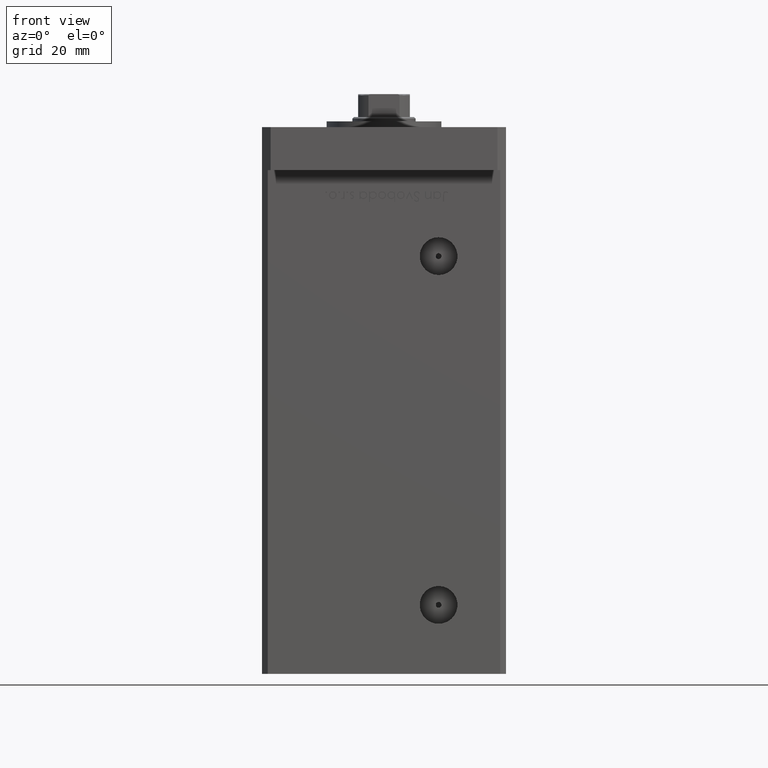
[diagram: clean part render]
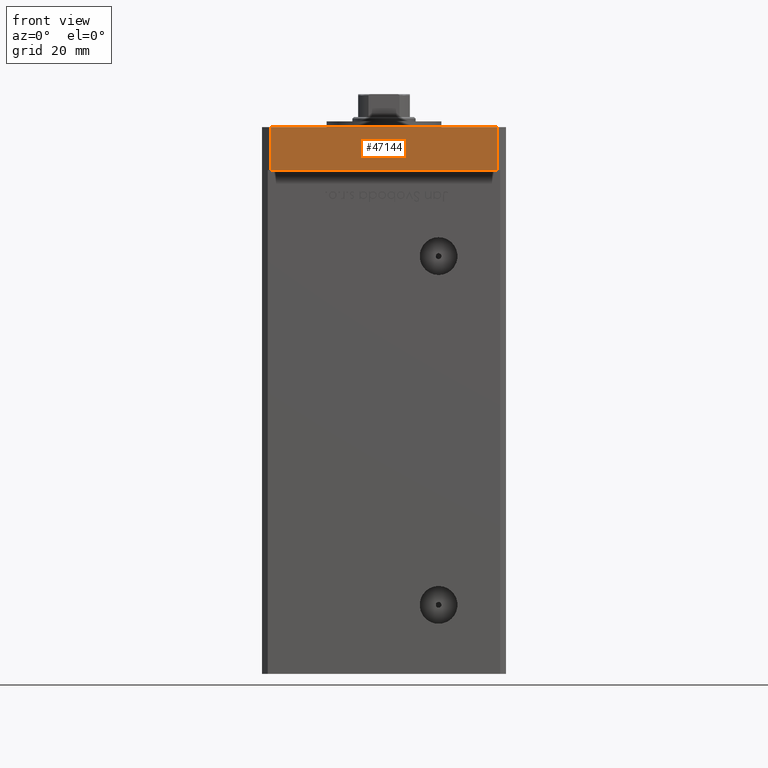
[diagram: same view with one face highlighted and labeled with its STEP entity id]
A machine part, front view. The second image highlights one B-rep face of the part: STEP entity #47144.
In plain terms, the highlighted planar face has unit normal (-0, 1, 0).
Its self-contained STEP definition (entity closure, byte-faithful):
#983 = LINE ( 'NONE', #4773, #1119 ) ;
#1119 = VECTOR ( 'NONE', #37879, 1000.000000000000000 ) ;
#1946 = DIRECTION ( 'NONE',  ( -0.000000000000000000, -0.000000000000000000, -1.000000000000000000 ) ) ;
#2921 = FACE_OUTER_BOUND ( 'NONE', #47126, .T. ) ;
#4773 = CARTESIAN_POINT ( 'NONE',  ( -39.50000000000000000, -65.00000000000000000, 15.00000000000000000 ) ) ;
#7541 = CARTESIAN_POINT ( 'NONE',  ( -39.50000000000000000, -65.00000000000000000, 15.00000000000000000 ) ) ;
#9667 = ORIENTED_EDGE ( 'NONE', *, *, #43617, .F. ) ;
#10546 = AXIS2_PLACEMENT_3D ( 'NONE', #7541, #41154, #32748 ) ;
#13703 = DIRECTION ( 'NONE',  ( 1.000000000000000000, 1.405345600791337191E-15, 0.000000000000000000 ) ) ;
#17438 = EDGE_CURVE ( 'NONE', #45954, #48967, #46798, .T. ) ;
#17784 = VECTOR ( 'NONE', #13703, 1000.000000000000000 ) ;
#18351 = LINE ( 'NONE', #18883, #32237 ) ;
#18883 = CARTESIAN_POINT ( 'NONE',  ( -39.50000000000000000, -65.00000000000000000, 15.00000000000000000 ) ) ;
#22178 = DIRECTION ( 'NONE',  ( -0.000000000000000000, -0.000000000000000000, -1.000000000000000000 ) ) ;
#23533 = VECTOR ( 'NONE', #1946, 1000.000000000000000 ) ;
#24093 = PLANE ( 'NONE',  #10546 ) ;
#28409 = CARTESIAN_POINT ( 'NONE',  ( 39.50000000000001421, -64.99999999999988631, 15.00000000000000000 ) ) ;
#28872 = ORIENTED_EDGE ( 'NONE', *, *, #17438, .T. ) ;
#29148 = CARTESIAN_POINT ( 'NONE',  ( -39.50000000000000000, -65.00000000000000000, 15.00000000000000000 ) ) ;
#31244 = LINE ( 'NONE', #51589, #23533 ) ;
#32237 = VECTOR ( 'NONE', #22178, 1000.000000000000000 ) ;
#32748 = DIRECTION ( 'NONE',  ( -1.000000000000000000, -1.405345600791337191E-15, 0.000000000000000000 ) ) ;
#32858 = VERTEX_POINT ( 'NONE', #29148 ) ;
#34310 = CARTESIAN_POINT ( 'NONE',  ( -39.50000000000000000, -65.00000000000000000, 0.000000000000000000 ) ) ;
#37879 = DIRECTION ( 'NONE',  ( 1.000000000000000000, 1.405345600791337191E-15, 0.000000000000000000 ) ) ;
#38276 = CARTESIAN_POINT ( 'NONE',  ( 39.50000000000001421, -64.99999999999988631, 0.000000000000000000 ) ) ;
#41154 = DIRECTION ( 'NONE',  ( -1.405345600791337191E-15, 1.000000000000000000, 0.000000000000000000 ) ) ;
#41363 = ORIENTED_EDGE ( 'NONE', *, *, #49514, .F. ) ;
#43617 = EDGE_CURVE ( 'NONE', #43905, #48967, #31244, .T. ) ;
#43874 = CARTESIAN_POINT ( 'NONE',  ( -39.50000000000000000, -65.00000000000000000, 0.000000000000000000 ) ) ;
#43905 = VERTEX_POINT ( 'NONE', #28409 ) ;
#45954 = VERTEX_POINT ( 'NONE', #43874 ) ;
#46798 = LINE ( 'NONE', #34310, #17784 ) ;
#47126 = EDGE_LOOP ( 'NONE', ( #28872, #9667, #41363, #49049 ) ) ;
#47144 = ADVANCED_FACE ( 'NONE', ( #2921 ), #24093, .F. ) ;
#48100 = EDGE_CURVE ( 'NONE', #32858, #45954, #18351, .T. ) ;
#48967 = VERTEX_POINT ( 'NONE', #38276 ) ;
#49049 = ORIENTED_EDGE ( 'NONE', *, *, #48100, .T. ) ;
#49514 = EDGE_CURVE ( 'NONE', #32858, #43905, #983, .T. ) ;
#51589 = CARTESIAN_POINT ( 'NONE',  ( 39.50000000000001421, -64.99999999999988631, 15.00000000000000000 ) ) ;